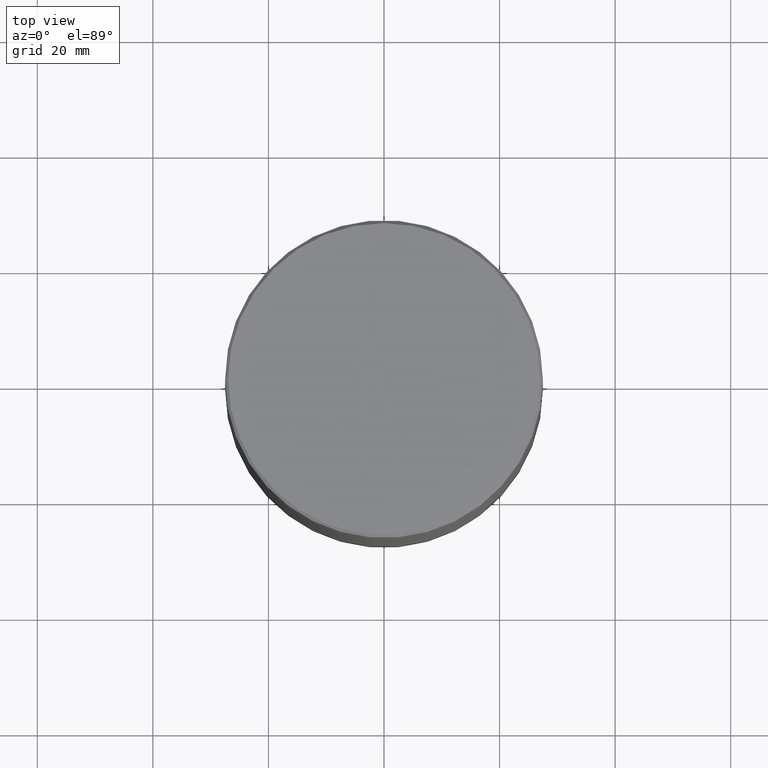
[diagram: clean part render]
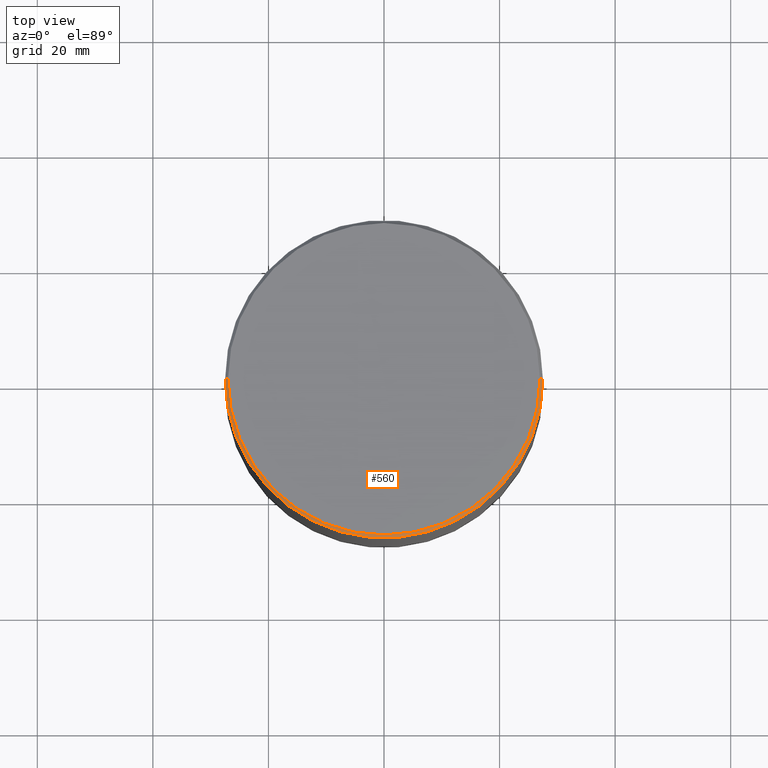
[diagram: same view with one face highlighted and labeled with its STEP entity id]
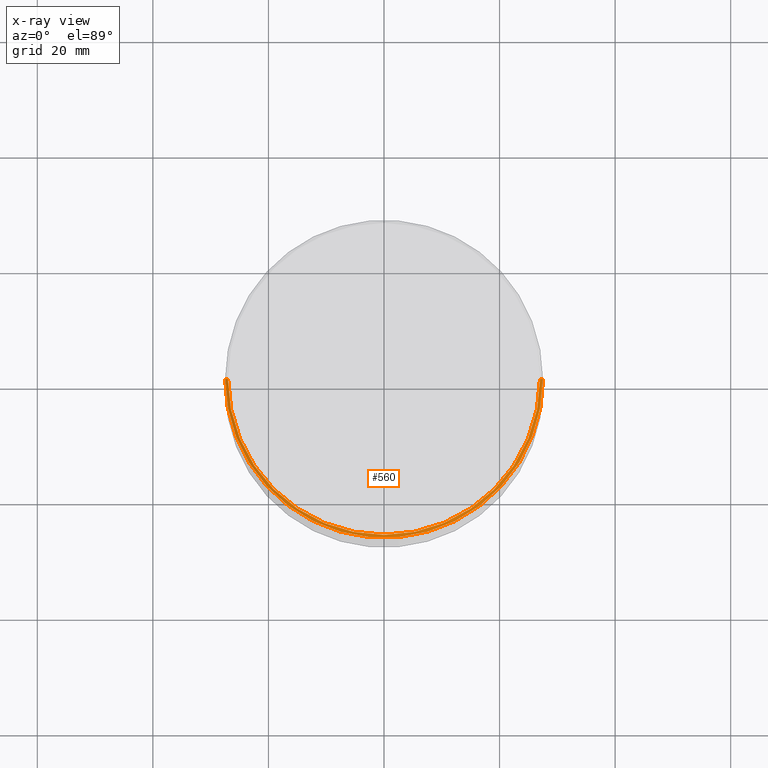
[diagram: x-ray of the same camera — body ghosted, the highlighted face saturated]
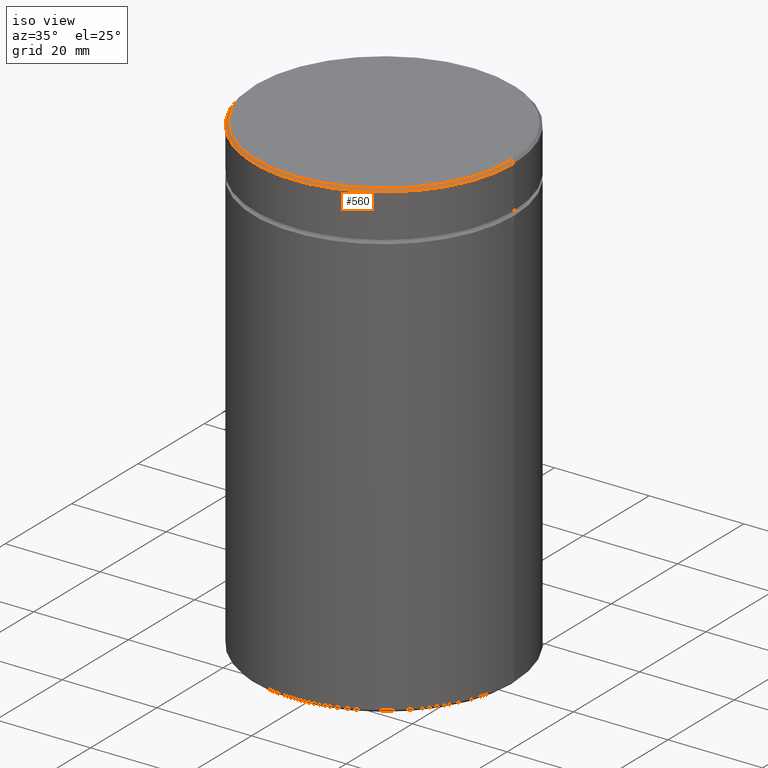
[diagram: same view with one face highlighted and labeled with its STEP entity id]
A machine part, top view. The second image highlights one B-rep face of the part: STEP entity #560.
The next image is the same camera in x-ray: the body ghosted, the highlighted face saturated — about 0% of this face is hidden behind the body in this view.
A second angle (iso view) of the same face is appended — the face is thin or edge-on in the first view.
In plain terms, the highlighted conical surface has half-angle 45 deg.
Its self-contained STEP definition (entity closure, byte-faithful):
#9 = CONICAL_SURFACE ( 'NONE', #327, 26.99999999999997868, 0.7853981633974552734 ) ;
#16 = VERTEX_POINT ( 'NONE', #397 ) ;
#20 = AXIS2_PLACEMENT_3D ( 'NONE', #496, #96, #493 ) ;
#24 = LINE ( 'NONE', #410, #296 ) ;
#49 = VERTEX_POINT ( 'NONE', #352 ) ;
#56 = VECTOR ( 'NONE', #455, 1000.000000000000000 ) ;
#96 = DIRECTION ( 'NONE',  ( -0.000000000000000000, -0.000000000000000000, 1.000000000000000000 ) ) ;
#108 = EDGE_CURVE ( 'NONE', #16, #280, #24, .T. ) ;
#161 = VERTEX_POINT ( 'NONE', #555 ) ;
#172 = DIRECTION ( 'NONE',  ( 1.000000000000000000, 0.000000000000000000, 0.000000000000000000 ) ) ;
#177 = CARTESIAN_POINT ( 'NONE',  ( 26.99999999999997868, 3.306546357697850972E-15, 0.000000000000000000 ) ) ;
#190 = DIRECTION ( 'NONE',  ( 0.000000000000000000, 0.000000000000000000, -1.000000000000000000 ) ) ;
#195 = CIRCLE ( 'NONE', #423, 27.50000000000000000 ) ;
#213 = EDGE_CURVE ( 'NONE', #16, #49, #260, .T. ) ;
#216 = DIRECTION ( 'NONE',  ( 0.000000000000000000, 0.000000000000000000, -1.000000000000000000 ) ) ;
#222 = CARTESIAN_POINT ( 'NONE',  ( 0.000000000000000000, 0.000000000000000000, -0.5000000000000143219 ) ) ;
#226 = ORIENTED_EDGE ( 'NONE', *, *, #213, .F. ) ;
#235 = CARTESIAN_POINT ( 'NONE',  ( 0.000000000000000000, 0.000000000000000000, 0.000000000000000000 ) ) ;
#258 = ORIENTED_EDGE ( 'NONE', *, *, #399, .F. ) ;
#260 = CIRCLE ( 'NONE', #20, 26.99999999999997868 ) ;
#275 = DIRECTION ( 'NONE',  ( -1.000000000000000000, 0.000000000000000000, 0.000000000000000000 ) ) ;
#280 = VERTEX_POINT ( 'NONE', #359 ) ;
#281 = EDGE_CURVE ( 'NONE', #49, #161, #396, .T. ) ;
#285 = FACE_OUTER_BOUND ( 'NONE', #438, .T. ) ;
#296 = VECTOR ( 'NONE', #462, 1000.000000000000000 ) ;
#322 = ORIENTED_EDGE ( 'NONE', *, *, #108, .T. ) ;
#327 = AXIS2_PLACEMENT_3D ( 'NONE', #235, #190, #275 ) ;
#352 = CARTESIAN_POINT ( 'NONE',  ( 26.99999999999997868, 3.337162527676536337E-15, 0.000000000000000000 ) ) ;
#359 = CARTESIAN_POINT ( 'NONE',  ( -27.50000000000000000, 3.367778697655221307E-15, -0.5000000000000143219 ) ) ;
#394 = ORIENTED_EDGE ( 'NONE', *, *, #281, .F. ) ;
#396 = LINE ( 'NONE', #177, #56 ) ;
#397 = CARTESIAN_POINT ( 'NONE',  ( -26.99999999999997868, 0.000000000000000000, 0.000000000000000000 ) ) ;
#399 = EDGE_CURVE ( 'NONE', #161, #280, #195, .T. ) ;
#410 = CARTESIAN_POINT ( 'NONE',  ( -26.99999999999997868, 0.000000000000000000, 0.000000000000000000 ) ) ;
#423 = AXIS2_PLACEMENT_3D ( 'NONE', #222, #216, #172 ) ;
#438 = EDGE_LOOP ( 'NONE', ( #394, #226, #322, #258 ) ) ;
#455 = DIRECTION ( 'NONE',  ( 0.7071067811865524577, 8.659560562354994488E-17, -0.7071067811865426878 ) ) ;
#462 = DIRECTION ( 'NONE',  ( -0.7071067811865524577, 0.000000000000000000, -0.7071067811865426878 ) ) ;
#493 = DIRECTION ( 'NONE',  ( 1.000000000000000000, 0.000000000000000000, 0.000000000000000000 ) ) ;
#496 = CARTESIAN_POINT ( 'NONE',  ( 0.000000000000000000, 0.000000000000000000, 0.000000000000000000 ) ) ;
#555 = CARTESIAN_POINT ( 'NONE',  ( 27.50000000000000000, 0.000000000000000000, -0.5000000000000143219 ) ) ;
#560 = ADVANCED_FACE ( 'NONE', ( #285 ), #9, .T. ) ;